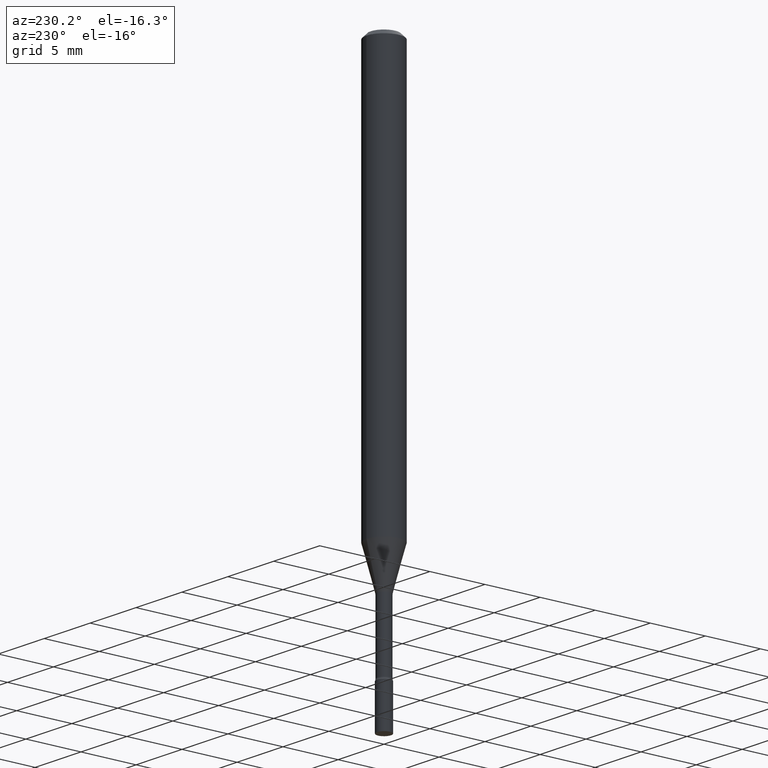
[diagram: clean part render]
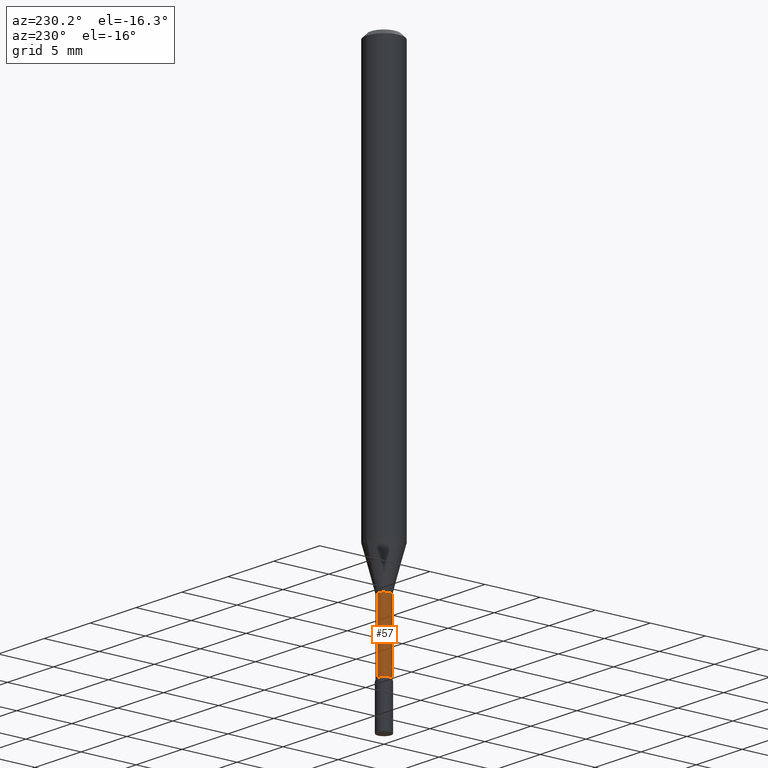
[diagram: same view with one face highlighted and labeled with its STEP entity id]
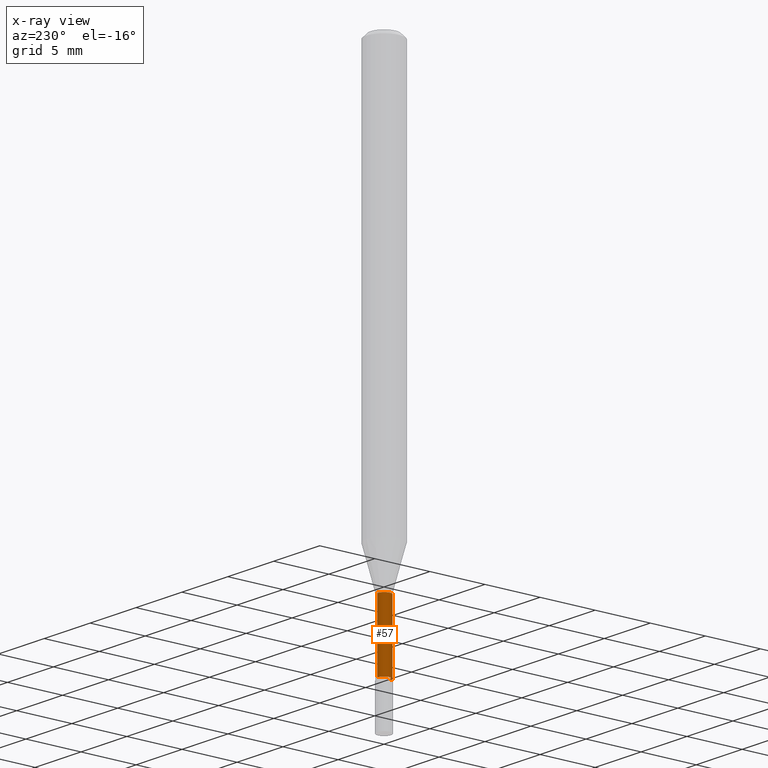
[diagram: x-ray of the same camera — body ghosted, the highlighted face saturated]
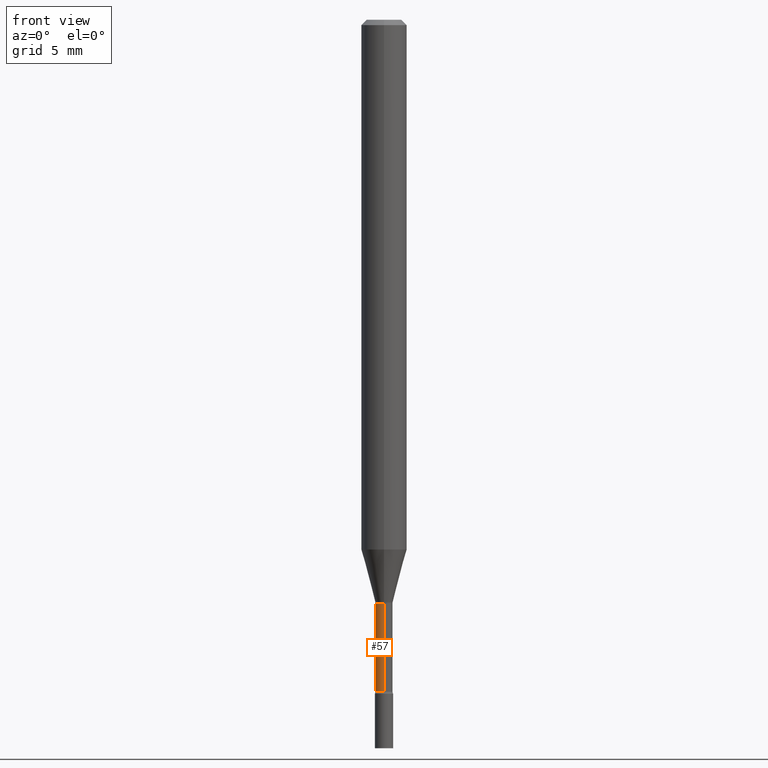
[diagram: same view with one face highlighted and labeled with its STEP entity id]
A machine part, auxiliary view. The second image highlights one B-rep face of the part: STEP entity #57.
The next image is the same camera in x-ray: the body ghosted, the highlighted face saturated — about 0% of this face is hidden behind the body in this view.
A second angle (front view) of the same face is appended — the face is thin or edge-on in the first view.
In plain terms, the highlighted cylindrical surface (edge-blend (fillet) strip) has radius 0.5969 mm, axis along (-0, 0, 1).
Its self-contained STEP definition (entity closure, byte-faithful):
#6 = LINE ( 'NONE', #9, #83 ) ;
#9 = CARTESIAN_POINT ( 'NONE',  ( -1.640996229256272766E-16, -0.02350000000000000352, 8.204825564474257839E-17 ) ) ;
#57 = ADVANCED_FACE ( 'NONE', ( #311 ), #110, .T. ) ;
#68 = EDGE_LOOP ( 'NONE', ( #290, #99, #430, #512 ) ) ;
#73 = DIRECTION ( 'NONE',  ( -6.982962677686265922E-15, -1.000000000000000000, 0.000000000000000000 ) ) ;
#83 = VECTOR ( 'NONE', #293, 39.37007874015748143 ) ;
#87 = EDGE_CURVE ( 'NONE', #97, #193, #264, .T. ) ;
#90 = DIRECTION ( 'NONE',  ( -6.982962677686265922E-15, -1.000000000000000000, 0.000000000000000000 ) ) ;
#97 = VERTEX_POINT ( 'NONE', #474 ) ;
#99 = ORIENTED_EDGE ( 'NONE', *, *, #252, .T. ) ;
#107 = VERTEX_POINT ( 'NONE', #471 ) ;
#110 = CYLINDRICAL_SURFACE ( 'NONE', #371, 0.02350000000000000352 ) ;
#171 = CARTESIAN_POINT ( 'NONE',  ( -1.640996229255880800E-16, -0.02350000000000559280, -1.601974787463810834 ) ) ;
#174 = DIRECTION ( 'NONE',  ( -2.445515036906521826E-29, 3.491415133818832582E-15, 1.000000000000000000 ) ) ;
#189 = AXIS2_PLACEMENT_3D ( 'NONE', #350, #317, #73 ) ;
#192 = EDGE_CURVE ( 'NONE', #107, #193, #6, .T. ) ;
#193 = VERTEX_POINT ( 'NONE', #171 ) ;
#252 = EDGE_CURVE ( 'NONE', #335, #107, #395, .T. ) ;
#264 = CIRCLE ( 'NONE', #189, 0.02350000000000000352 ) ;
#290 = ORIENTED_EDGE ( 'NONE', *, *, #391, .F. ) ;
#293 = DIRECTION ( 'NONE',  ( -2.445515036906521826E-29, 3.491415133818832582E-15, 1.000000000000000000 ) ) ;
#311 = FACE_OUTER_BOUND ( 'NONE', #68, .T. ) ;
#317 = DIRECTION ( 'NONE',  ( -2.445515036906521826E-29, 3.491415133818832582E-15, 1.000000000000000000 ) ) ;
#319 = CARTESIAN_POINT ( 'NONE',  ( 0.000000000000000000, 0.000000000000000000, 0.000000000000000000 ) ) ;
#335 = VERTEX_POINT ( 'NONE', #418 ) ;
#350 = CARTESIAN_POINT ( 'NONE',  ( 3.917653431487879575E-29, -5.593159016947357312E-15, -1.601974787463810834 ) ) ;
#352 = DIRECTION ( 'NONE',  ( -2.445515036906521826E-29, 3.491415133818832582E-15, 1.000000000000000000 ) ) ;
#363 = VECTOR ( 'NONE', #174, 39.37007874015748143 ) ;
#371 = AXIS2_PLACEMENT_3D ( 'NONE', #319, #352, #477 ) ;
#377 = LINE ( 'NONE', #510, #363 ) ;
#391 = EDGE_CURVE ( 'NONE', #335, #97, #377, .T. ) ;
#395 = CIRCLE ( 'NONE', #403, 0.02350000000000000352 ) ;
#403 = AXIS2_PLACEMENT_3D ( 'NONE', #446, #489, #90 ) ;
#418 = CARTESIAN_POINT ( 'NONE',  ( 1.723066134218695118E-16, 0.02349999999999356423, -1.843461651584688887 ) ) ;
#430 = ORIENTED_EDGE ( 'NONE', *, *, #192, .T. ) ;
#446 = CARTESIAN_POINT ( 'NONE',  ( 4.508213188910888464E-29, -6.436289908957442537E-15, -1.843461651584688887 ) ) ;
#471 = CARTESIAN_POINT ( 'NONE',  ( -1.640996229255822129E-16, -0.02350000000000643935, -1.843461651584688887 ) ) ;
#474 = CARTESIAN_POINT ( 'NONE',  ( 1.669775429036686571E-16, 0.02349999999999441078, -1.601974787463810834 ) ) ;
#477 = DIRECTION ( 'NONE',  ( -6.982962677686265922E-15, -1.000000000000000000, 3.491415133818832582E-15 ) ) ;
#489 = DIRECTION ( 'NONE',  ( -2.445515036906521826E-29, 3.491415133818832582E-15, 1.000000000000000000 ) ) ;
#510 = CARTESIAN_POINT ( 'NONE',  ( 1.669775429036235194E-16, 0.02350000000000000352, -8.204825564474257839E-17 ) ) ;
#512 = ORIENTED_EDGE ( 'NONE', *, *, #87, .F. ) ;